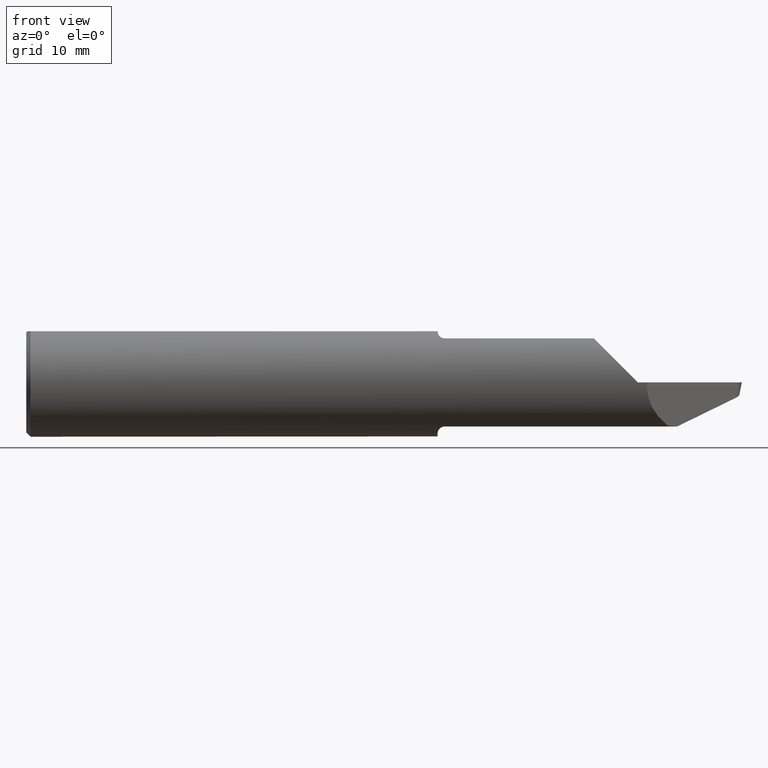
[diagram: clean part render]
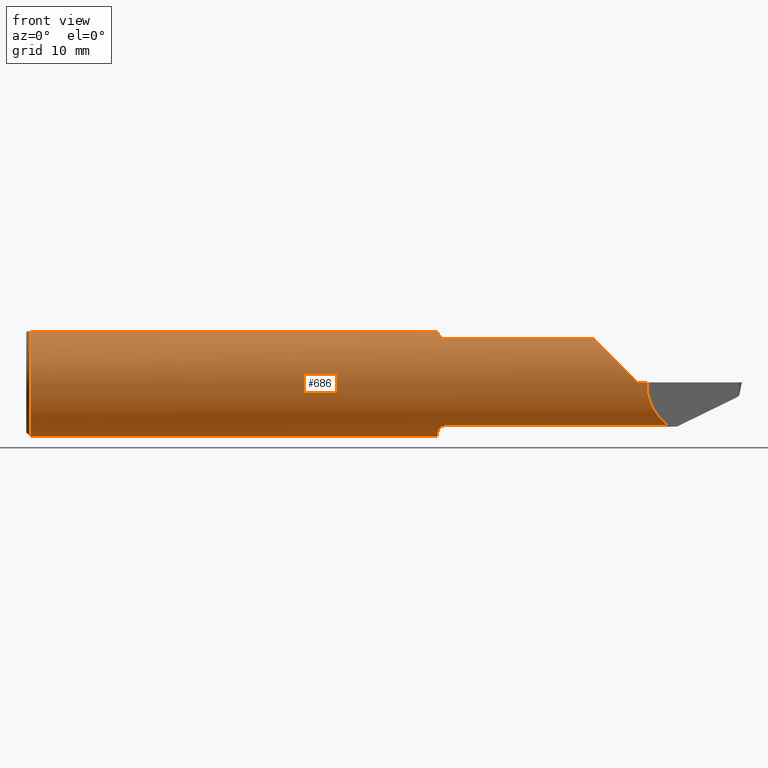
[diagram: same view with one face highlighted and labeled with its STEP entity id]
A machine part, front view. The second image highlights one B-rep face of the part: STEP entity #686.
In plain terms, the highlighted cylindrical surface (partial cylindrical patch) has radius 4.7587 mm, axis along (-1, -0, -0).
Its self-contained STEP definition (entity closure, byte-faithful):
#2 = AXIS2_PLACEMENT_3D ( 'NONE', #193, #130, #624 ) ;
#15 = VECTOR ( 'NONE', #666, 39.37007874015748143 ) ;
#17 = DIRECTION ( 'NONE',  ( -1.000000000000000000, -0.000000000000000000, -0.000000000000000000 ) ) ;
#29 = B_SPLINE_CURVE_WITH_KNOTS ( 'NONE', 3,
 ( #567, #369, #703, #380 ),
 .UNSPECIFIED., .F., .F.,
 ( 4, 4 ),
 ( 0.001081723733566367302, 0.001661700673542921419 ),
 .UNSPECIFIED. ) ;
#34 = CARTESIAN_POINT ( 'NONE',  ( 1.421184626225752368, -0.08534999999999996756, 0.1667794951425384531 ) ) ;
#63 = ORIENTED_EDGE ( 'NONE', *, *, #445, .T. ) ;
#74 = CARTESIAN_POINT ( 'NONE',  ( 1.960526878236144244, -0.1129504686584655582, 0.1494731217638575471 ) ) ;
#77 = B_SPLINE_CURVE_WITH_KNOTS ( 'NONE', 3,
 ( #34, #154, #404, #481, #661, #91, #290, #551 ),
 .UNSPECIFIED., .F., .F.,
 ( 4, 2, 2, 4 ),
 ( 0.0006141256517407871858, 0.001146034975910872715, 0.001411989637995914992, 0.001677944300080957268 ),
 .UNSPECIFIED. ) ;
#91 = CARTESIAN_POINT ( 'NONE',  ( 1.437078532975327727, -0.1115153464561643298, 0.1505664708503502702 ) ) ;
#108 = CARTESIAN_POINT ( 'NONE',  ( 1.443999999999999728, -0.1129504686584654888, -0.1494731217638573251 ) ) ;
#112 = VERTEX_POINT ( 'NONE', #145 ) ;
#120 = CARTESIAN_POINT ( 'NONE',  ( 2.500000000000000000, -0.1873499999999999888, -4.745349621061712245E-17 ) ) ;
#122 = ORIENTED_EDGE ( 'NONE', *, *, #591, .T. ) ;
#124 = LINE ( 'NONE', #252, #707 ) ;
#125 = CARTESIAN_POINT ( 'NONE',  ( 1.419675599206763783, -0.07876749217114979718, 0.1701481169429114315 ) ) ;
#130 = DIRECTION ( 'NONE',  ( 1.000000000000000000, 0.000000000000000000, 0.000000000000000000 ) ) ;
#143 = VECTOR ( 'NONE', #560, 39.37007874015748143 ) ;
#145 = CARTESIAN_POINT ( 'NONE',  ( 0.01500000000000079568, 0.06325108694718227509, 0.1763499999999999512 ) ) ;
#154 = CARTESIAN_POINT ( 'NONE',  ( 1.422585190695227597, -0.09145938470227693573, 0.1636529957854460648 ) ) ;
#155 = CARTESIAN_POINT ( 'NONE',  ( 1.443999999999999728, -0.1129504686584655998, 0.1494731217638572973 ) ) ;
#165 = ORIENTED_EDGE ( 'NONE', *, *, #387, .F. ) ;
#171 = CARTESIAN_POINT ( 'NONE',  ( 2.500000000000000000, 0.06325108694718227509, 0.1763499999999999512 ) ) ;
#173 = CARTESIAN_POINT ( 'NONE',  ( 1.429783483830883162, -0.1051624633615447779, -0.1550820948667110122 ) ) ;
#181 = DIRECTION ( 'NONE',  ( 1.000000000000000000, -0.000000000000000000, -0.000000000000000000 ) ) ;
#188 = CARTESIAN_POINT ( 'NONE',  ( 1.418999999999999817, -0.06325108694718373226, 0.1763499999999999512 ) ) ;
#192 = CARTESIAN_POINT ( 'NONE',  ( 1.869749092623466558, -0.1129504686584655859, 0.1494731217638575194 ) ) ;
#193 = CARTESIAN_POINT ( 'NONE',  ( 1.418999999999999817, 0.000000000000000000, 0.000000000000000000 ) ) ;
#198 = ORIENTED_EDGE ( 'NONE', *, *, #747, .F. ) ;
#200 = DIRECTION ( 'NONE',  ( 1.000000000000000000, -0.000000000000000000, -0.000000000000000000 ) ) ;
#223 = AXIS2_PLACEMENT_3D ( 'NONE', #582, #17, #459 ) ;
#226 = B_SPLINE_CURVE_WITH_KNOTS ( 'NONE', 3,
 ( #108, #614, #810, #423, #173, #484, #411, #737 ),
 .UNSPECIFIED., .F., .F.,
 ( 4, 2, 2, 4 ),
 ( 1.968246507312795868E-07, 0.0002705785518796402912, 0.0005409602791085493670, 0.001081723733566367302 ),
 .UNSPECIFIED. ) ;
#228 = LINE ( 'NONE', #414, #540 ) ;
#232 = DIRECTION ( 'NONE',  ( 0.000000000000000000, 0.000000000000000000, -1.000000000000000000 ) ) ;
#235 = VERTEX_POINT ( 'NONE', #155 ) ;
#252 = CARTESIAN_POINT ( 'NONE',  ( 1.869749092623466558, -0.1129504686584655859, -0.1494731217638575194 ) ) ;
#260 = CARTESIAN_POINT ( 'NONE',  ( 1.418999999999999817, 0.06325108694718227509, 0.1763499999999999512 ) ) ;
#266 = CARTESIAN_POINT ( 'NONE',  ( 2.213833035312449127, -0.1129504686584655859, -0.1494731217638575194 ) ) ;
#269 = CIRCLE ( 'NONE', #731, 0.1873499999999999888 ) ;
#271 = CARTESIAN_POINT ( 'NONE',  ( 2.213833035312449127, -0.1129504686584655859, -0.1494731217638575194 ) ) ;
#290 = CARTESIAN_POINT ( 'NONE',  ( 1.440386741880977040, -0.1129504686584707901, 0.1494731217638536336 ) ) ;
#298 = CARTESIAN_POINT ( 'NONE',  ( 1.418999999999999817, -0.06476652021089729372, -0.1757990908957478837 ) ) ;
#304 = EDGE_CURVE ( 'NONE', #485, #769, #29, .T. ) ;
#305 = CARTESIAN_POINT ( 'NONE',  ( 1.421184626225752368, -0.08534999999999996756, 0.1667794951425384531 ) ) ;
#306 = VERTEX_POINT ( 'NONE', #548 ) ;
#315 = ORIENTED_EDGE ( 'NONE', *, *, #398, .T. ) ;
#317 = CARTESIAN_POINT ( 'NONE',  ( 0.01500000000000079568, 0.000000000000000000, 0.000000000000000000 ) ) ;
#325 =( BOUNDED_CURVE ( )  B_SPLINE_CURVE ( 3, ( #271, #529, #725, #775 ),
 .UNSPECIFIED., .F., .T. ) 
 B_SPLINE_CURVE_WITH_KNOTS ( ( 4, 4 ),
 ( 5.407212885630066523, 6.330897197100739504 ),
 .UNSPECIFIED. ) 
 CURVE ( )  GEOMETRIC_REPRESENTATION_ITEM ( )  RATIONAL_B_SPLINE_CURVE ( ( 1.000000000000000000, 0.9301554373620524174, 0.9301554373620524174, 1.000000000000000000 ) ) 
 REPRESENTATION_ITEM ( '' )  );
#326 = LINE ( 'NONE', #192, #143 ) ;
#328 = ORIENTED_EDGE ( 'NONE', *, *, #656, .T. ) ;
#334 = CYLINDRICAL_SURFACE ( 'NONE', #223, 0.1873499999999999888 ) ;
#343 = CARTESIAN_POINT ( 'NONE',  ( 1.418999999999999817, 0.000000000000000000, 0.000000000000000000 ) ) ;
#345 = CARTESIAN_POINT ( 'NONE',  ( 1.421184626225752368, -0.08534999999999995368, -0.1667794951425384531 ) ) ;
#352 = CARTESIAN_POINT ( 'NONE',  ( 1.960526878236144244, -0.1129504686584655582, 0.1494731217638575471 ) ) ;
#354 = CIRCLE ( 'NONE', #2, 0.1873499999999999888 ) ;
#358 = DIRECTION ( 'NONE',  ( -1.000000000000000000, -0.000000000000000000, -0.000000000000000000 ) ) ;
#362 = EDGE_CURVE ( 'NONE', #454, #562, #124, .T. ) ;
#369 = CARTESIAN_POINT ( 'NONE',  ( 1.419680673000415894, -0.07878962450278849394, -0.1701367906434539390 ) ) ;
#373 = DIRECTION ( 'NONE',  ( -1.000000000000000000, -0.000000000000000000, -0.000000000000000000 ) ) ;
#377 = CARTESIAN_POINT ( 'NONE',  ( 2.141702867418015188, -0.1873500000000000443, -1.894185036436226334E-18 ) ) ;
#380 = CARTESIAN_POINT ( 'NONE',  ( 1.418999999999999817, -0.06476652021089729372, -0.1757990908957478837 ) ) ;
#382 = ORIENTED_EDGE ( 'NONE', *, *, #601, .F. ) ;
#387 = EDGE_CURVE ( 'NONE', #235, #782, #326, .T. ) ;
#389 = DIRECTION ( 'NONE',  ( 0.000000000000000000, 0.000000000000000000, -1.000000000000000000 ) ) ;
#395 = AXIS2_PLACEMENT_3D ( 'NONE', #317, #200, #389 ) ;
#398 = EDGE_CURVE ( 'NONE', #439, #306, #692, .T. ) ;
#404 = CARTESIAN_POINT ( 'NONE',  ( 1.424708789571851986, -0.09743537618374299714, 0.1601392975941932084 ) ) ;
#411 = CARTESIAN_POINT ( 'NONE',  ( 1.422586893946101272, -0.09146681443154595914, -0.1636491935950594723 ) ) ;
#414 = CARTESIAN_POINT ( 'NONE',  ( 2.500000000000000000, -0.06325108694718227509, 0.1763499999999999512 ) ) ;
#416 = CIRCLE ( 'NONE', #395, 0.1873499999999999888 ) ;
#423 = CARTESIAN_POINT ( 'NONE',  ( 1.431832178970064096, -0.1076014420774738939, -0.1533875229558557540 ) ) ;
#424 = VERTEX_POINT ( 'NONE', #188 ) ;
#434 = AXIS2_PLACEMENT_3D ( 'NONE', #343, #594, #232 ) ;
#439 = VERTEX_POINT ( 'NONE', #377 ) ;
#443 = ORIENTED_EDGE ( 'NONE', *, *, #515, .F. ) ;
#445 = EDGE_CURVE ( 'NONE', #306, #782, #701, .T. ) ;
#451 = EDGE_CURVE ( 'NONE', #699, #112, #416, .T. ) ;
#452 = CARTESIAN_POINT ( 'NONE',  ( 2.110000000000000320, -0.1873499999999999888, -4.745349621061712245E-17 ) ) ;
#454 = VERTEX_POINT ( 'NONE', #266 ) ;
#459 = DIRECTION ( 'NONE',  ( 0.000000000000000000, 0.000000000000000000, 1.000000000000000000 ) ) ;
#463 = ORIENTED_EDGE ( 'NONE', *, *, #750, .F. ) ;
#470 = VECTOR ( 'NONE', #373, 39.37007874015748143 ) ;
#480 = B_SPLINE_CURVE_WITH_KNOTS ( 'NONE', 3,
 ( #503, #757, #125, #508 ),
 .UNSPECIFIED., .F., .F.,
 ( 4, 4 ),
 ( 4.102419206628873488E-05, 0.0006141256517407871858 ),
 .UNSPECIFIED. ) ;
#481 = CARTESIAN_POINT ( 'NONE',  ( 1.429809059610948951, -0.1051947344225460379, 0.1550601383860006344 ) ) ;
#484 = CARTESIAN_POINT ( 'NONE',  ( 1.424689989136572965, -0.09739335834436110839, -0.1601651199371056378 ) ) ;
#485 = VERTEX_POINT ( 'NONE', #345 ) ;
#494 = DIRECTION ( 'NONE',  ( 0.000000000000000000, 0.000000000000000000, -1.000000000000000000 ) ) ;
#495 = ORIENTED_EDGE ( 'NONE', *, *, #586, .F. ) ;
#498 = CARTESIAN_POINT ( 'NONE',  ( 1.443999999999999728, -0.1129504686584654888, -0.1494731217638573251 ) ) ;
#503 = CARTESIAN_POINT ( 'NONE',  ( 1.418999999999999817, -0.06476652021089729372, 0.1757990908957478837 ) ) ;
#504 = ORIENTED_EDGE ( 'NONE', *, *, #451, .T. ) ;
#507 = DIRECTION ( 'NONE',  ( -1.000000000000000000, -0.000000000000000000, -0.000000000000000000 ) ) ;
#508 = CARTESIAN_POINT ( 'NONE',  ( 1.421184626225752368, -0.08534999999999996756, 0.1667794951425384531 ) ) ;
#509 = VERTEX_POINT ( 'NONE', #680 ) ;
#515 = EDGE_CURVE ( 'NONE', #562, #485, #226, .T. ) ;
#529 = CARTESIAN_POINT ( 'NONE',  ( 2.164487922858646662, -0.1606879575236967450, -0.1133999356533503394 ) ) ;
#535 = CARTESIAN_POINT ( 'NONE',  ( 1.418999999999999817, -0.06476652021089729372, 0.1757990908957478837 ) ) ;
#540 = VECTOR ( 'NONE', #358, 39.37007874015748143 ) ;
#548 = CARTESIAN_POINT ( 'NONE',  ( 2.110000000000000320, -0.1873499999999999888, -4.745349621061712245E-17 ) ) ;
#551 = CARTESIAN_POINT ( 'NONE',  ( 1.443999999999999728, -0.1129504686584655998, 0.1494731217638572973 ) ) ;
#553 = ORIENTED_EDGE ( 'NONE', *, *, #784, .T. ) ;
#559 = ORIENTED_EDGE ( 'NONE', *, *, #304, .F. ) ;
#560 = DIRECTION ( 'NONE',  ( 1.000000000000000000, 0.000000000000000000, 0.000000000000000000 ) ) ;
#562 = VERTEX_POINT ( 'NONE', #498 ) ;
#565 = CARTESIAN_POINT ( 'NONE',  ( 0.01500000000000079568, 0.000000000000000000, 0.000000000000000000 ) ) ;
#567 = CARTESIAN_POINT ( 'NONE',  ( 1.421184626225752368, -0.08534999999999995368, -0.1667794951425384531 ) ) ;
#575 = CARTESIAN_POINT ( 'NONE',  ( 1.996600064346651049, -0.1606879575236967173, 0.1133999356533503394 ) ) ;
#577 = VERTEX_POINT ( 'NONE', #260 ) ;
#582 = CARTESIAN_POINT ( 'NONE',  ( 2.500000000000000000, 0.000000000000000000, 0.000000000000000000 ) ) ;
#584 = CARTESIAN_POINT ( 'NONE',  ( 0.01500000000000079568, 0.000000000000000000, -0.1873499999999999888 ) ) ;
#586 = EDGE_CURVE ( 'NONE', #806, #593, #480, .T. ) ;
#591 = EDGE_CURVE ( 'NONE', #509, #699, #269, .T. ) ;
#593 = VERTEX_POINT ( 'NONE', #305 ) ;
#594 = DIRECTION ( 'NONE',  ( 1.000000000000000000, 0.000000000000000000, 0.000000000000000000 ) ) ;
#601 = EDGE_CURVE ( 'NONE', #424, #806, #354, .T. ) ;
#614 = CARTESIAN_POINT ( 'NONE',  ( 1.440394666912732102, -0.1129504686584659467, -0.1494731217638572696 ) ) ;
#615 = EDGE_LOOP ( 'NONE', ( #715, #328, #315, #63, #165, #198, #495, #382, #553, #122, #504, #823, #463, #559, #443 ) ) ;
#624 = DIRECTION ( 'NONE',  ( 0.000000000000000000, 0.000000000000000000, -1.000000000000000000 ) ) ;
#639 = CARTESIAN_POINT ( 'NONE',  ( 2.050165707162854289, -0.1873499999999999888, 0.05983429283714615521 ) ) ;
#656 = EDGE_CURVE ( 'NONE', #454, #439, #325, .T. ) ;
#661 = CARTESIAN_POINT ( 'NONE',  ( 1.431794310168975404, -0.1075702432047997981, 0.1534098348099884601 ) ) ;
#666 = DIRECTION ( 'NONE',  ( 1.000000000000000000, 0.000000000000000000, 0.000000000000000000 ) ) ;
#680 = CARTESIAN_POINT ( 'NONE',  ( 0.01500000000000016251, -0.06325108694718371838, 0.1763499999999999512 ) ) ;
#686 = ADVANCED_FACE ( 'NONE', ( #781 ), #334, .T. ) ;
#692 = LINE ( 'NONE', #120, #470 ) ;
#699 = VERTEX_POINT ( 'NONE', #584 ) ;
#701 =( BOUNDED_CURVE ( )  B_SPLINE_CURVE ( 3, ( #452, #639, #575, #74 ),
 .UNSPECIFIED., .F., .T. ) 
 B_SPLINE_CURVE_WITH_KNOTS ( ( 4, 4 ),
 ( 4.712388980384689674, 5.636073291855362655 ),
 .UNSPECIFIED. ) 
 CURVE ( )  GEOMETRIC_REPRESENTATION_ITEM ( )  RATIONAL_B_SPLINE_CURVE ( ( 1.000000000000000000, 0.9301554373620524174, 0.9301554373620524174, 1.000000000000000000 ) ) 
 REPRESENTATION_ITEM ( '' )  );
#703 = CARTESIAN_POINT ( 'NONE',  ( 1.418999999999999817, -0.07189143372580567015, -0.1731741862229594364 ) ) ;
#707 = VECTOR ( 'NONE', #507, 39.37007874015748143 ) ;
#715 = ORIENTED_EDGE ( 'NONE', *, *, #362, .F. ) ;
#725 = CARTESIAN_POINT ( 'NONE',  ( 2.138639136373741589, -0.1873500000000000165, -0.05983429283714613439 ) ) ;
#728 = LINE ( 'NONE', #171, #15 ) ;
#731 = AXIS2_PLACEMENT_3D ( 'NONE', #565, #181, #494 ) ;
#737 = CARTESIAN_POINT ( 'NONE',  ( 1.421184626225752368, -0.08534999999999995368, -0.1667794951425384531 ) ) ;
#743 = EDGE_CURVE ( 'NONE', #112, #577, #728, .T. ) ;
#747 = EDGE_CURVE ( 'NONE', #593, #235, #77, .T. ) ;
#750 = EDGE_CURVE ( 'NONE', #769, #577, #797, .T. ) ;
#757 = CARTESIAN_POINT ( 'NONE',  ( 1.418999999999999595, -0.07190536322760518462, 0.1731690544253191300 ) ) ;
#769 = VERTEX_POINT ( 'NONE', #298 ) ;
#775 = CARTESIAN_POINT ( 'NONE',  ( 2.141702867418015188, -0.1873500000000000443, -1.894185036436226334E-18 ) ) ;
#781 = FACE_OUTER_BOUND ( 'NONE', #615, .T. ) ;
#782 = VERTEX_POINT ( 'NONE', #352 ) ;
#784 = EDGE_CURVE ( 'NONE', #424, #509, #228, .T. ) ;
#797 = CIRCLE ( 'NONE', #434, 0.1873499999999999888 ) ;
#806 = VERTEX_POINT ( 'NONE', #535 ) ;
#810 = CARTESIAN_POINT ( 'NONE',  ( 1.437064668066267759, -0.1115020549876360734, -0.1505758754555965861 ) ) ;
#823 = ORIENTED_EDGE ( 'NONE', *, *, #743, .T. ) ;